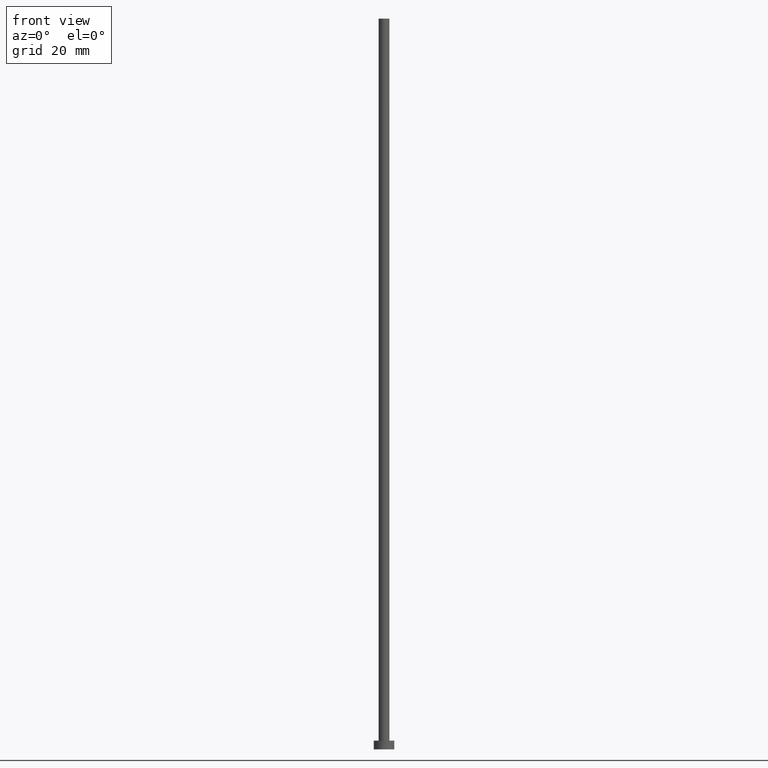
[diagram: clean part render]
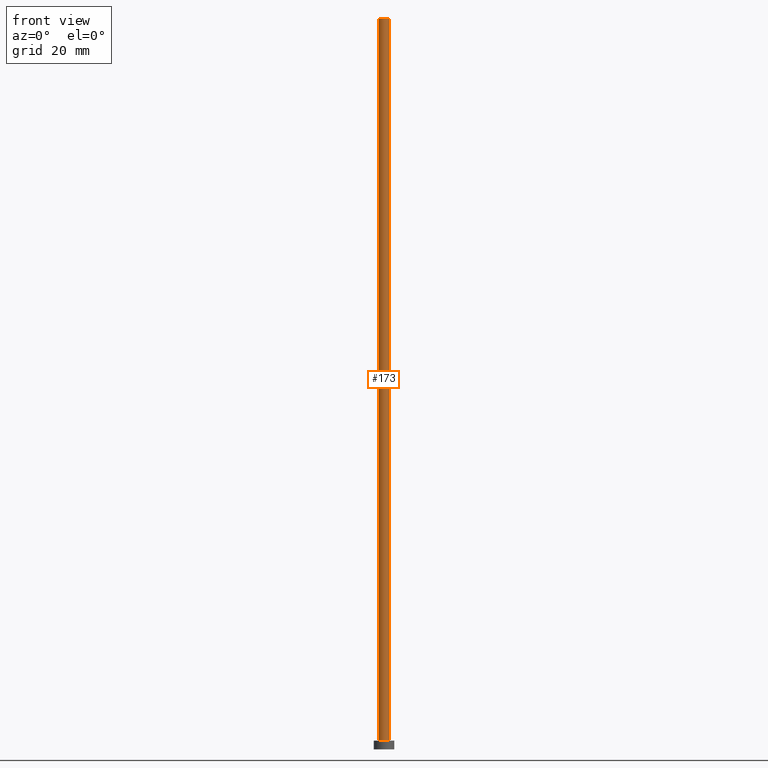
[diagram: same view with one face highlighted and labeled with its STEP entity id]
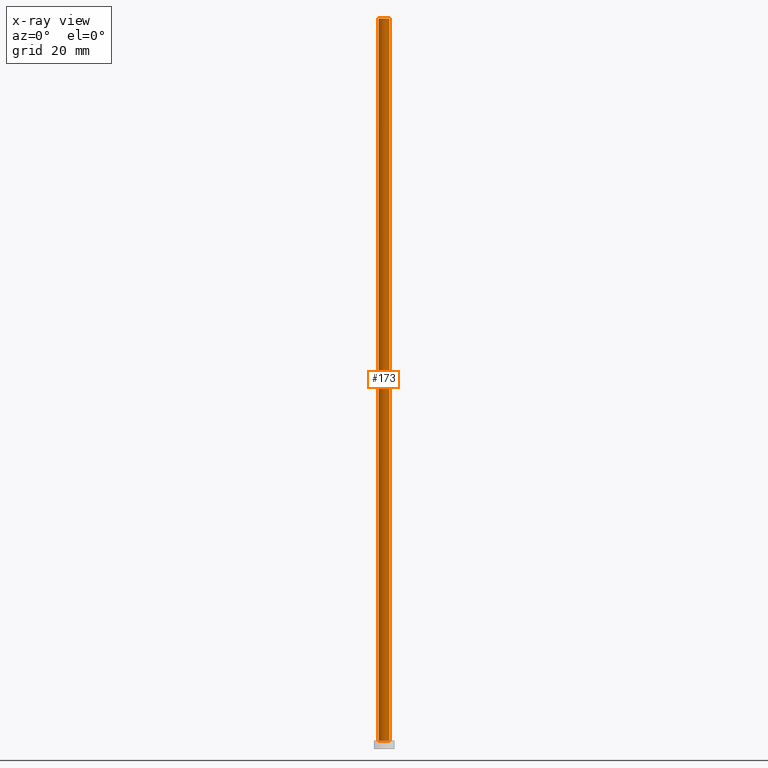
[diagram: x-ray of the same camera — body ghosted, the highlighted face saturated]
A machine part, front view. The second image highlights one B-rep face of the part: STEP entity #173.
The next image is the same camera in x-ray: the body ghosted, the highlighted face saturated — about 0% of this face is hidden behind the body in this view.
In plain terms, the highlighted cylindrical surface (edge-blend (fillet) strip) has radius 1.85 mm, axis along (-0, -0, -1).
Its self-contained STEP definition (entity closure, byte-faithful):
#2 = VERTEX_POINT ( 'NONE', #35 ) ;
#6 = EDGE_CURVE ( 'NONE', #81, #2, #159, .T. ) ;
#7 = VECTOR ( 'NONE', #66, 1000.000000000000000 ) ;
#9 = DIRECTION ( 'NONE',  ( -0.000000000000000000, -0.000000000000000000, -1.000000000000000000 ) ) ;
#18 = VERTEX_POINT ( 'NONE', #138 ) ;
#21 = DIRECTION ( 'NONE',  ( 1.000000000000000000, 0.000000000000000000, 0.000000000000000000 ) ) ;
#22 = CIRCLE ( 'NONE', #182, 1.850000000000000089 ) ;
#26 = CARTESIAN_POINT ( 'NONE',  ( 1.850000000000000089, 2.265596578422603100E-16, 250.0000000000000000 ) ) ;
#28 = CARTESIAN_POINT ( 'NONE',  ( -1.850000000000000089, 0.000000000000000000, 250.0000000000000000 ) ) ;
#29 = LINE ( 'NONE', #28, #7 ) ;
#35 = CARTESIAN_POINT ( 'NONE',  ( 1.850000000000000089, 2.265596578422603100E-16, 3.000000000000000000 ) ) ;
#37 = CARTESIAN_POINT ( 'NONE',  ( 0.000000000000000000, 0.000000000000000000, 3.000000000000000000 ) ) ;
#39 = CARTESIAN_POINT ( 'NONE',  ( 0.000000000000000000, 0.000000000000000000, 250.0000000000000000 ) ) ;
#40 = AXIS2_PLACEMENT_3D ( 'NONE', #204, #150, #226 ) ;
#41 = ORIENTED_EDGE ( 'NONE', *, *, #185, .F. ) ;
#47 = CARTESIAN_POINT ( 'NONE',  ( -1.850000000000000089, 0.000000000000000000, 250.0000000000000000 ) ) ;
#50 = AXIS2_PLACEMENT_3D ( 'NONE', #37, #142, #140 ) ;
#66 = DIRECTION ( 'NONE',  ( -0.000000000000000000, -0.000000000000000000, -1.000000000000000000 ) ) ;
#81 = VERTEX_POINT ( 'NONE', #157 ) ;
#87 = EDGE_CURVE ( 'NONE', #196, #18, #22, .T. ) ;
#97 = EDGE_LOOP ( 'NONE', ( #41, #114, #100, #156 ) ) ;
#100 = ORIENTED_EDGE ( 'NONE', *, *, #212, .T. ) ;
#106 = CYLINDRICAL_SURFACE ( 'NONE', #40, 1.850000000000000089 ) ;
#114 = ORIENTED_EDGE ( 'NONE', *, *, #87, .F. ) ;
#138 = CARTESIAN_POINT ( 'NONE',  ( 1.850000000000000089, 2.265596578422603100E-16, 250.0000000000000000 ) ) ;
#140 = DIRECTION ( 'NONE',  ( 1.000000000000000000, 0.000000000000000000, 0.000000000000000000 ) ) ;
#142 = DIRECTION ( 'NONE',  ( 0.000000000000000000, 0.000000000000000000, 1.000000000000000000 ) ) ;
#143 = VECTOR ( 'NONE', #9, 1000.000000000000000 ) ;
#150 = DIRECTION ( 'NONE',  ( -0.000000000000000000, -0.000000000000000000, -1.000000000000000000 ) ) ;
#156 = ORIENTED_EDGE ( 'NONE', *, *, #6, .T. ) ;
#157 = CARTESIAN_POINT ( 'NONE',  ( -1.850000000000000089, 0.000000000000000000, 3.000000000000000000 ) ) ;
#159 = CIRCLE ( 'NONE', #50, 1.850000000000000089 ) ;
#173 = ADVANCED_FACE ( 'NONE', ( #191 ), #106, .T. ) ;
#182 = AXIS2_PLACEMENT_3D ( 'NONE', #39, #200, #21 ) ;
#185 = EDGE_CURVE ( 'NONE', #18, #2, #232, .T. ) ;
#191 = FACE_OUTER_BOUND ( 'NONE', #97, .T. ) ;
#196 = VERTEX_POINT ( 'NONE', #47 ) ;
#200 = DIRECTION ( 'NONE',  ( 0.000000000000000000, 0.000000000000000000, 1.000000000000000000 ) ) ;
#204 = CARTESIAN_POINT ( 'NONE',  ( 0.000000000000000000, 0.000000000000000000, 250.0000000000000000 ) ) ;
#212 = EDGE_CURVE ( 'NONE', #196, #81, #29, .T. ) ;
#226 = DIRECTION ( 'NONE',  ( -1.000000000000000000, 0.000000000000000000, 0.000000000000000000 ) ) ;
#232 = LINE ( 'NONE', #26, #143 ) ;